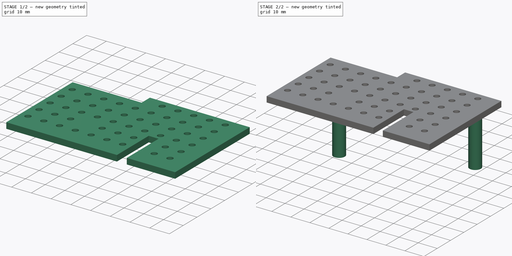
[diagram: build sequence overview — one tinted view per stage of 2, left to right]
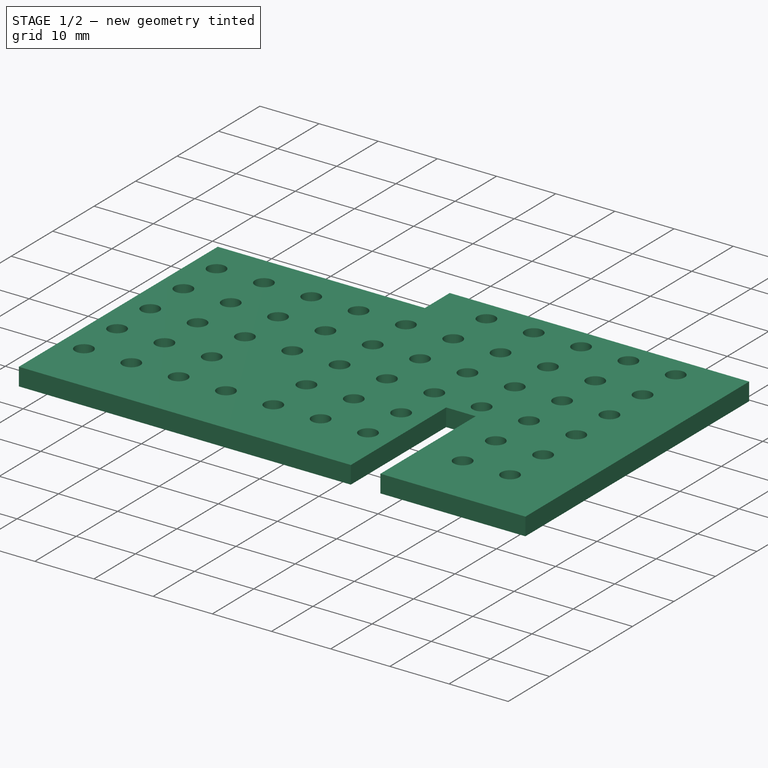
[diagram: stage 1 of 2 — iso view after this stage's code; geometry added in this stage tinted green]
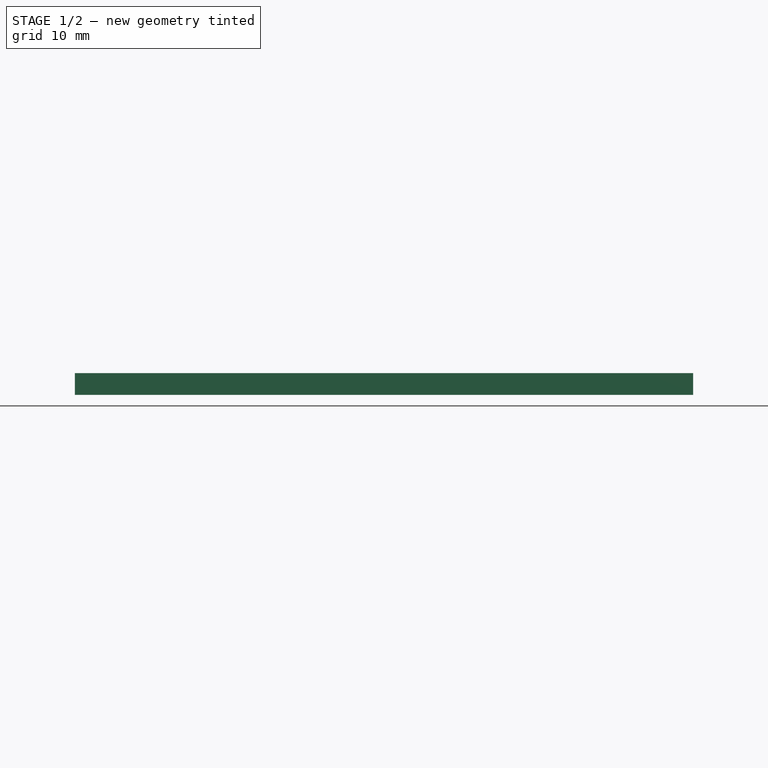
[diagram: stage 1 of 2 — front view after this stage's code; geometry added in this stage tinted green]
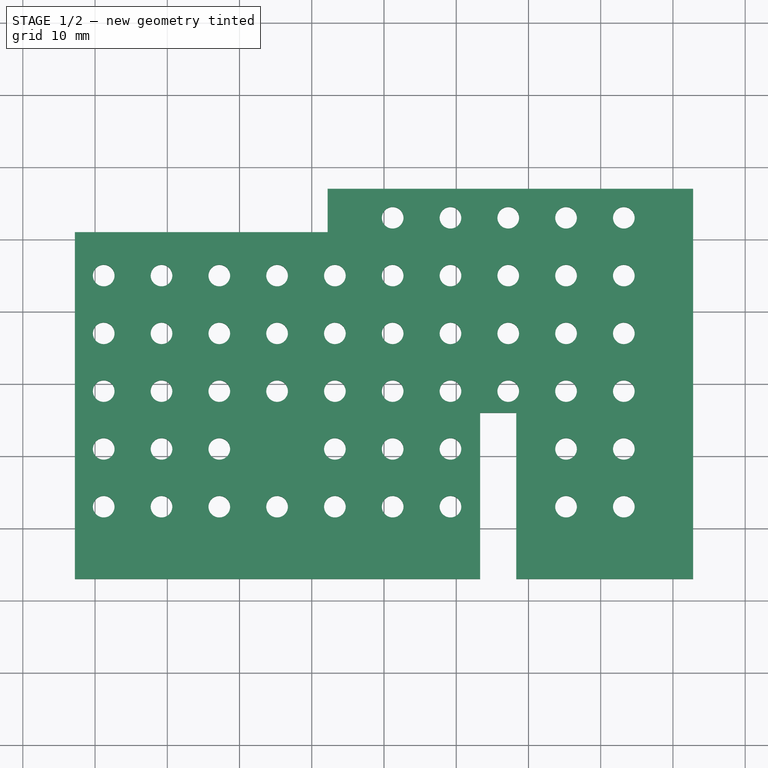
[diagram: stage 1 of 2 — top view after this stage's code; geometry added in this stage tinted green]
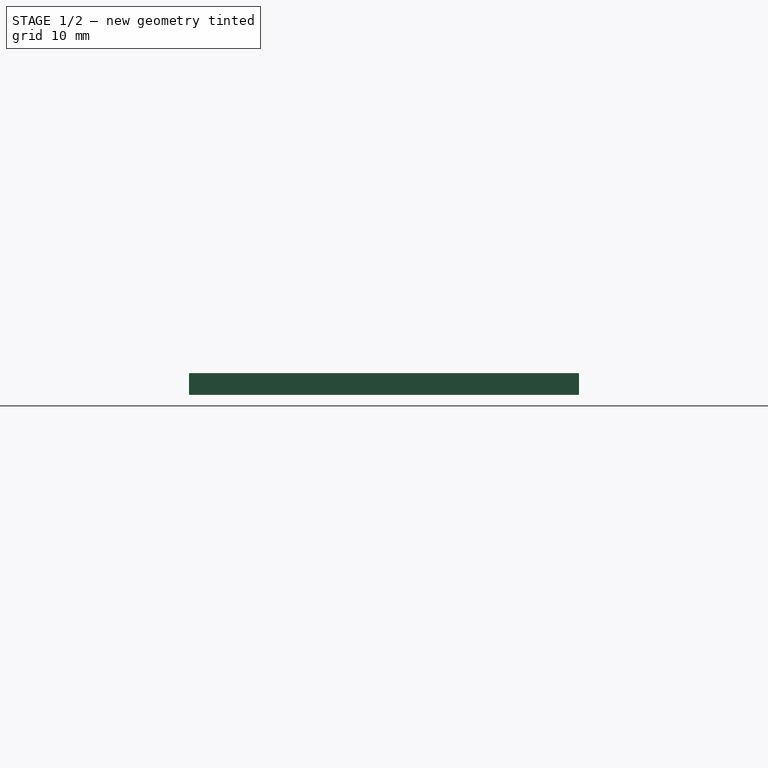
[diagram: stage 1 of 2 — right view after this stage's code; geometry added in this stage tinted green]
FCSTD DOCUMENT  (FreeCAD 0.16R6706 (Git))
Label: pi_top
License: All rights reserved
LicenseURL: http://en.wikipedia.org/wiki/All_rights_reserved
objects: Sketcher::SketchObject×3, PartDesign::Pad×2, PartDesign::Pocket×1, PartDesign::Fillet×1
note: 10 computed .brp shape members not serialized (recipe doc carries the construction recipe); baked Part::Feature solids carry a one-line shape summary decoded from their .brp

FEATURE [Sketcher::SketchObject] Sketch
  sketch-geometry (22):
    g0: LineSegment [constr] StartX=-42.8 StartY=27 StartZ=0 EndX=42.8 EndY=27 EndZ=0
    g1: LineSegment [constr] StartX=42.8 StartY=27 StartZ=0 EndX=42.8 EndY=-27 EndZ=0
    g2: LineSegment [constr] StartX=42.8 StartY=-27 StartZ=0 EndX=-42.8 EndY=-27 EndZ=0
    g3: LineSegment [constr] StartX=-42.8 StartY=-27 StartZ=0 EndX=-42.8 EndY=27 EndZ=0
    g4: LineSegment [constr] StartX=-42.8 StartY=27 StartZ=0 EndX=-7.8 EndY=27 EndZ=0
    g5: LineSegment [constr] StartX=-7.8 StartY=27 StartZ=0 EndX=-7.8 EndY=21 EndZ=0
    g6: LineSegment [constr] StartX=-7.8 StartY=21 StartZ=0 EndX=-42.8 EndY=21 EndZ=0
    g7: LineSegment [constr] StartX=-42.8 StartY=21 StartZ=0 EndX=-42.8 EndY=27 EndZ=0
    g8: LineSegment [constr] StartX=13.3 StartY=-4 StartZ=0 EndX=18.3 EndY=-4 EndZ=0
    g9: LineSegment [constr] StartX=18.3 StartY=-4 StartZ=0 EndX=18.3 EndY=-27 EndZ=0
    g10: LineSegment [constr] StartX=18.3 StartY=-27 StartZ=0 EndX=13.3 EndY=-27 EndZ=0
    g11: LineSegment [constr] StartX=13.3 StartY=-27 StartZ=0 EndX=13.3 EndY=-4 EndZ=0
    g12: LineSegment StartX=-7.8 StartY=27 StartZ=0 EndX=42.8 EndY=27 EndZ=0
    g13: LineSegment StartX=42.8 StartY=27 StartZ=0 EndX=42.8 EndY=-27 EndZ=0
    g14: LineSegment StartX=42.8 StartY=-27 StartZ=0 EndX=18.3 EndY=-27 EndZ=0
    g15: LineSegment StartX=18.3 StartY=-27 StartZ=0 EndX=18.3 EndY=-4 EndZ=0
    g16: LineSegment StartX=18.3 StartY=-4 StartZ=0 EndX=13.3 EndY=-4 EndZ=0
    g17: LineSegment StartX=13.3 StartY=-4 StartZ=0 EndX=13.3 EndY=-27 EndZ=0
    g18: LineSegment StartX=13.3 StartY=-27 StartZ=0 EndX=-42.8 EndY=-27 EndZ=0
    g19: LineSegment StartX=-42.8 StartY=-27 StartZ=0 EndX=-42.8 EndY=21 EndZ=0
    g20: LineSegment StartX=-42.8 StartY=21 StartZ=0 EndX=-7.8 EndY=21 EndZ=0
    g21: LineSegment StartX=-7.8 StartY=21 StartZ=0 EndX=-7.8 EndY=27 EndZ=0
  constraints (55):
    c: Coincident(g0,g1)
    c: Coincident(g1,g2)
    c: Coincident(g2,g3)
    c: Coincident(g3,g0)
    c: Horizontal(g0)
    c: Vertical(g1)
    c: Vertical(g3)
    c: DistanceY(g3,g3) = 54
    c: DistanceX(g0,g0) = 85.6
    c: Symmetric(g2,g1,g-2)
    c: Symmetric(g0,g2,g-1)
    c: Coincident(g4,g5)
    c: Coincident(g5,g6)
    c: Coincident(g6,g7)
    c: Coincident(g7,g4)
    c: Horizontal(g4)
    c: Horizontal(g6)
    c: Vertical(g5)
    c: Vertical(g7)
    c: Coincident(g4,g0)
    c: DistanceX(g6,g6) = 35
    c: DistanceY(g5,g5) = 6
    c: Coincident(g8,g9)
    c: Coincident(g9,g10)
    c: Coincident(g10,g11)
    c: Coincident(g11,g8)
    c: Horizontal(g8)
    c: Horizontal(g10)
    c: Vertical(g9)
    c: Vertical(g11)
    c: PointOnObject(g9,g2)
    c: DistanceX(g8,g8) = 5
    c: Distance(g9,g1) = 24.5
    c: DistanceY(g11,g11) = 23
    c: Coincident(g4,g12)
    c: Coincident(g12,g0)
    c: Coincident(g12,g13)
    c: Coincident(g13,g1)
    c: Coincident(g13,g14)
    c: Coincident(g14,g9)
    c: Coincident(g14,g15)
    c: Coincident(g15,g8)
    c: Coincident(g15,g16)
    c: Coincident(g16,g8)
    c: Coincident(g16,g17)
    c: Coincident(g17,g10)
    c: Coincident(g17,g18)
    c: Coincident(g18,g2)
    c: Coincident(g18,g19)
    c: Coincident(g19,g6)
    c: Vertical(g19)
    c: Coincident(g19,g20)
    c: Coincident(g20,g5)
    c: Coincident(g20,g21)
    c: Coincident(g21,g12)
FEATURE [PartDesign::Pad] Pad
  Length = 3
  Length2 = 100
  Sketch = -> Sketch
  Type = 0
FEATURE [Sketcher::SketchObject] Sketch002
  Placement = pos=(0,0,3) rot=(0,0,1;0rad)
  Support = -> Pad [Face12]
  sketch-geometry (157):
    g0: Circle [constr] CenterX=-38.8 CenterY=23 CenterZ=0 NormalX=0 NormalY=0 NormalZ=1 Radius=1.5
    g1: LineSegment [constr] StartX=-42.8 StartY=27 StartZ=0 EndX=42.8 EndY=27 EndZ=0
    g2: LineSegment [constr] StartX=42.8 StartY=27 StartZ=0 EndX=42.8 EndY=-27 EndZ=0
    g3: LineSegment [constr] StartX=42.8 StartY=-27 StartZ=0 EndX=-42.8 EndY=-27 EndZ=0
    g4: LineSegment [constr] StartX=-42.8 StartY=-27 StartZ=0 EndX=-42.8 EndY=27 EndZ=0
    g5: Circle [constr] CenterX=-30.8 CenterY=23 CenterZ=0 NormalX=0 NormalY=0 NormalZ=1 Radius=1.5
    g6: LineSegment [constr] StartX=-38.8 StartY=23 StartZ=0 EndX=-30.8 EndY=23 EndZ=0
    g7: Circle [constr] CenterX=-22.8 CenterY=23 CenterZ=0 NormalX=0 NormalY=0 NormalZ=1 Radius=1.5
    g8: LineSegment [constr] StartX=-30.8 StartY=23 StartZ=0 EndX=-22.8 EndY=23 EndZ=0
    g9: Circle [constr] CenterX=-14.8 CenterY=23 CenterZ=0 NormalX=0 NormalY=0 NormalZ=1 Radius=1.5
    g10: LineSegment [constr] StartX=-22.8 StartY=23 StartZ=0 EndX=-14.8 EndY=23 EndZ=0
    g11: Circle [constr] CenterX=-6.8 CenterY=23 CenterZ=0 NormalX=0 NormalY=0 NormalZ=1 Radius=1.5
    g12: LineSegment [constr] StartX=-14.8 StartY=23 StartZ=0 EndX=-6.8 EndY=23 EndZ=0
    g13: Circle CenterX=1.2 CenterY=23 CenterZ=0 NormalX=0 NormalY=0 NormalZ=1 Radius=1.5
    g14: LineSegment [constr] StartX=-6.8 StartY=23 StartZ=0 EndX=1.2 EndY=23 EndZ=0
    g15: Circle CenterX=9.2 CenterY=23 CenterZ=0 NormalX=0 NormalY=0 NormalZ=1 Radius=1.5
    g16: LineSegment [constr] StartX=1.2 StartY=23 StartZ=0 EndX=9.2 EndY=23 EndZ=0
    g17: Circle CenterX=17.2 CenterY=23 CenterZ=0 NormalX=0 NormalY=0 NormalZ=1 Radius=1.5
    g18: LineSegment [constr] StartX=9.2 StartY=23 StartZ=0 EndX=17.2 EndY=23 EndZ=0
    g19: Circle CenterX=25.2 CenterY=23 CenterZ=0 NormalX=0 NormalY=0 NormalZ=1 Radius=1.5
    g20: LineSegment [constr] StartX=17.2 StartY=23 StartZ=0 EndX=25.2 EndY=23 EndZ=0
    g21: Circle CenterX=33.2 CenterY=23 CenterZ=0 NormalX=0 NormalY=0 NormalZ=1 Radius=1.5
    g22: LineSegment [constr] StartX=25.2 StartY=23 StartZ=0 EndX=33.2 EndY=23 EndZ=0
    g23: Circle [constr] CenterX=41.2 CenterY=23 CenterZ=0 NormalX=0 NormalY=0 NormalZ=1 Radius=1.5
    g24: LineSegment [constr] StartX=33.2 StartY=23 StartZ=0 EndX=41.2 EndY=23 EndZ=0
    g25: Circle CenterX=-38.8 CenterY=15 CenterZ=0 NormalX=0 NormalY=0 NormalZ=1 Radius=1.5
    g26: LineSegment [constr] StartX=-38.8 StartY=23 StartZ=0 EndX=-38.8 EndY=15 EndZ=0
    g27: Circle CenterX=-30.8 CenterY=15 CenterZ=0 NormalX=0 NormalY=0 NormalZ=1 Radius=1.5
    g28: LineSegment [constr] StartX=-38.8 StartY=15 StartZ=0 EndX=-30.8 EndY=15 EndZ=0
    g29: Circle CenterX=-22.8 CenterY=15 CenterZ=0 NormalX=0 NormalY=0 NormalZ=1 Radius=1.5
    g30: LineSegment [constr] StartX=-30.8 StartY=15 StartZ=0 EndX=-22.8 EndY=15 EndZ=0
    g31: Circle CenterX=-14.8 CenterY=15 CenterZ=0 NormalX=0 NormalY=0 NormalZ=1 Radius=1.5
    g32: LineSegment [constr] StartX=-22.8 StartY=15 StartZ=0 EndX=-14.8 EndY=15 EndZ=0
    g33: Circle CenterX=-6.8 CenterY=15 CenterZ=0 NormalX=0 NormalY=0 NormalZ=1 Radius=1.5
    g34: LineSegment [constr] StartX=-14.8 StartY=15 StartZ=0 EndX=-6.8 EndY=15 EndZ=0
    g35: Circle CenterX=1.2 CenterY=15 CenterZ=0 NormalX=0 NormalY=0 NormalZ=1 Radius=1.5
    g36: LineSegment [constr] StartX=-6.8 StartY=15 StartZ=0 EndX=1.2 EndY=15 EndZ=0
    g37: Circle CenterX=9.2 CenterY=15 CenterZ=0 NormalX=0 NormalY=0 NormalZ=1 Radius=1.5
    g38: LineSegment [constr] StartX=1.2 StartY=15 StartZ=0 EndX=9.2 EndY=15 EndZ=0
    g39: Circle CenterX=17.2 CenterY=15 CenterZ=0 NormalX=0 NormalY=0 NormalZ=1 Radius=1.5
    g40: LineSegment [constr] StartX=9.2 StartY=15 StartZ=0 EndX=17.2 EndY=15 EndZ=0
    g41: Circle CenterX=25.2 CenterY=15 CenterZ=0 NormalX=0 NormalY=0 NormalZ=1 Radius=1.5
    g42: LineSegment [constr] StartX=17.2 StartY=15 StartZ=0 EndX=25.2 EndY=15 EndZ=0
    g43: Circle CenterX=33.2 CenterY=15 CenterZ=0 NormalX=0 NormalY=0 NormalZ=1 Radius=1.5
    g44: LineSegment [constr] StartX=25.2 StartY=15 StartZ=0 EndX=33.2 EndY=15 EndZ=0
    g45: Circle [constr] CenterX=41.2 CenterY=15 CenterZ=0 NormalX=0 NormalY=0 NormalZ=1 Radius=1.5
    g46: LineSegment [constr] StartX=33.2 StartY=15 StartZ=0 EndX=41.2 EndY=15 EndZ=0
    g47: Circle CenterX=-38.8 CenterY=7 CenterZ=0 NormalX=0 NormalY=0 NormalZ=1 Radius=1.5
    g48: LineSegment [constr] StartX=-38.8 StartY=15 StartZ=0 EndX=-38.8 EndY=7 EndZ=0
    g49: Circle CenterX=-30.8 CenterY=7 CenterZ=0 NormalX=0 NormalY=0 NormalZ=1 Radius=1.5
    g50: LineSegment [constr] StartX=-38.8 StartY=7 StartZ=0 EndX=-30.8 EndY=7 EndZ=0
    g51: Circle CenterX=-22.8 CenterY=7 CenterZ=0 NormalX=0 NormalY=0 NormalZ=1 Radius=1.5
    g52: LineSegment [constr] StartX=-30.8 StartY=7 StartZ=0 EndX=-22.8 EndY=7 EndZ=0
    g53: Circle CenterX=-14.8 CenterY=7 CenterZ=0 NormalX=0 NormalY=0 NormalZ=1 Radius=1.5
    g54: LineSegment [constr] StartX=-22.8 StartY=7 StartZ=0 EndX=-14.8 EndY=7 EndZ=0
    g55: Circle CenterX=-6.8 CenterY=7 CenterZ=0 NormalX=0 NormalY=0 NormalZ=1 Radius=1.5
    g56: LineSegment [constr] StartX=-14.8 StartY=7 StartZ=0 EndX=-6.8 EndY=7 EndZ=0
    g57: Circle CenterX=1.2 CenterY=7 CenterZ=0 NormalX=0 NormalY=0 NormalZ=1 Radius=1.5
    g58: LineSegment [constr] StartX=-6.8 StartY=7 StartZ=0 EndX=1.2 EndY=7 EndZ=0
    g59: Circle CenterX=9.2 CenterY=7 CenterZ=0 NormalX=0 NormalY=0 NormalZ=1 Radius=1.5
    g60: LineSegment [constr] StartX=1.2 StartY=7 StartZ=0 EndX=9.2 EndY=7 EndZ=0
    g61: Circle CenterX=17.2 CenterY=7 CenterZ=0 NormalX=0 NormalY=0 NormalZ=1 Radius=1.5
    g62: LineSegment [constr] StartX=9.2 StartY=7 StartZ=0 EndX=17.2 EndY=7 EndZ=0
    g63: Circle CenterX=25.2 CenterY=7 CenterZ=0 NormalX=0 NormalY=0 NormalZ=1 Radius=1.5
    g64: LineSegment [constr] StartX=17.2 StartY=7 StartZ=0 EndX=25.2 EndY=7 EndZ=0
    g65: Circle CenterX=33.2 CenterY=7 CenterZ=0 NormalX=0 NormalY=0 NormalZ=1 Radius=1.5
    g66: LineSegment [constr] StartX=25.2 StartY=7 StartZ=0 EndX=33.2 EndY=7 EndZ=0
    g67: Circle [constr] CenterX=41.2 CenterY=7 CenterZ=0 NormalX=0 NormalY=0 NormalZ=1 Radius=1.5
    g68: LineSegment [constr] StartX=33.2 StartY=7 StartZ=0 EndX=41.2 EndY=7 EndZ=0
    g69: Circle CenterX=-38.8 CenterY=-1 CenterZ=0 NormalX=0 NormalY=0 NormalZ=1 Radius=1.5
    g70: LineSegment [constr] StartX=-38.8 StartY=7 StartZ=0 EndX=-38.8 EndY=-1 EndZ=0
    g71: Circle CenterX=-30.8 CenterY=-1 CenterZ=0 NormalX=0 NormalY=0 NormalZ=1 Radius=1.5
    g72: LineSegment [constr] StartX=-38.8 StartY=-1 StartZ=0 EndX=-30.8 EndY=-1 EndZ=0
    g73: Circle CenterX=-22.8 CenterY=-1 CenterZ=0 NormalX=0 NormalY=0 NormalZ=1 Radius=1.5
    g74: LineSegment [constr] StartX=-30.8 StartY=-1 StartZ=0 EndX=-22.8 EndY=-1 EndZ=0
    g75: Circle CenterX=-14.8 CenterY=-1 CenterZ=0 NormalX=0 NormalY=0 NormalZ=1 Radius=1.5
    g76: LineSegment [constr] StartX=-22.8 StartY=-1 StartZ=0 EndX=-14.8 EndY=-1 EndZ=0
    g77: Circle CenterX=-6.8 CenterY=-1 CenterZ=0 NormalX=0 NormalY=0 NormalZ=1 Radius=1.5
    g78: LineSegment [constr] StartX=-14.8 StartY=-1 StartZ=0 EndX=-6.8 EndY=-1 EndZ=0
    g79: Circle CenterX=1.2 CenterY=-1 CenterZ=0 NormalX=0 NormalY=0 NormalZ=1 Radius=1.5
    g80: LineSegment [constr] StartX=-6.8 StartY=-1 StartZ=0 EndX=1.2 EndY=-1 EndZ=0
    g81: Circle CenterX=9.2 CenterY=-1 CenterZ=0 NormalX=0 NormalY=0 NormalZ=1 Radius=1.5
    g82: LineSegment [constr] StartX=1.2 StartY=-1 StartZ=0 EndX=9.2 EndY=-1 EndZ=0
    g83: Circle CenterX=17.2 CenterY=-1 CenterZ=0 NormalX=0 NormalY=0 NormalZ=1 Radius=1.5
    g84: LineSegment [constr] StartX=9.2 StartY=-1 StartZ=0 EndX=17.2 EndY=-1 EndZ=0
    g85: Circle CenterX=25.2 CenterY=-1 CenterZ=0 NormalX=0 NormalY=0 NormalZ=1 Radius=1.5
    g86: LineSegment [constr] StartX=17.2 StartY=-1 StartZ=0 EndX=25.2 EndY=-1 EndZ=0
    g87: Circle CenterX=33.2 CenterY=-1 CenterZ=0 NormalX=0 NormalY=0 NormalZ=1 Radius=1.5
    g88: LineSegment [constr] StartX=25.2 StartY=-1 StartZ=0 EndX=33.2 EndY=-1 EndZ=0
    g89: Circle [constr] CenterX=41.2 CenterY=-1 CenterZ=0 NormalX=0 NormalY=0 NormalZ=1 Radius=1.5
    g90: LineSegment [constr] StartX=33.2 StartY=-1 StartZ=0 EndX=41.2 EndY=-1 EndZ=0
    g91: Circle CenterX=-38.8 CenterY=-9 CenterZ=0 NormalX=0 NormalY=0 NormalZ=1 Radius=1.5
    g92: LineSegment [constr] StartX=-38.8 StartY=-1 StartZ=0 EndX=-38.8 EndY=-9 EndZ=0
    g93: Circle CenterX=-30.8 CenterY=-9 CenterZ=0 NormalX=0 NormalY=0 NormalZ=1 Radius=1.5
    g94: LineSegment [constr] StartX=-38.8 StartY=-9 StartZ=0 EndX=-30.8 EndY=-9 EndZ=0
    g95: Circle CenterX=-22.8 CenterY=-9 CenterZ=0 NormalX=0 NormalY=0 NormalZ=1 Radius=1.5
    g96: LineSegment [constr] StartX=-30.8 StartY=-9 StartZ=0 EndX=-22.8 EndY=-9 EndZ=0
    g97: Circle [constr] CenterX=-14.8 CenterY=-9 CenterZ=0 NormalX=0 NormalY=0 NormalZ=1 Radius=1.5
    g98: LineSegment [constr] StartX=-22.8 StartY=-9 StartZ=0 EndX=-14.8 EndY=-9 EndZ=0
    g99: Circle CenterX=-6.8 CenterY=-9 CenterZ=0 NormalX=0 NormalY=0 NormalZ=1 Radius=1.5
    g100: LineSegment [constr] StartX=-14.8 StartY=-9 StartZ=0 EndX=-6.8 EndY=-9 EndZ=0
    g101: Circle CenterX=1.2 CenterY=-9 CenterZ=0 NormalX=0 NormalY=0 NormalZ=1 Radius=1.5
    g102: LineSegment [constr] StartX=-6.8 StartY=-9 StartZ=0 EndX=1.2 EndY=-9 EndZ=0
    g103: Circle CenterX=9.2 CenterY=-9 CenterZ=0 NormalX=0 NormalY=0 NormalZ=1 Radius=1.5
    g104: LineSegment [constr] StartX=1.2 StartY=-9 StartZ=0 EndX=9.2 EndY=-9 EndZ=0
    g105: Circle [constr] CenterX=17.2 CenterY=-9 CenterZ=0 NormalX=0 NormalY=0 NormalZ=1 Radius=1.5
    g106: LineSegment [constr] StartX=9.2 StartY=-9 StartZ=0 EndX=17.2 EndY=-9 EndZ=0
    g107: Circle CenterX=25.2 CenterY=-9 CenterZ=0 NormalX=0 NormalY=0 NormalZ=1 Radius=1.5
    g108: LineSegment [constr] StartX=17.2 StartY=-9 StartZ=0 EndX=25.2 EndY=-9 EndZ=0
    g109: Circle CenterX=33.2 CenterY=-9 CenterZ=0 NormalX=0 NormalY=0 NormalZ=1 Radius=1.5
    g110: LineSegment [constr] StartX=25.2 StartY=-9 StartZ=0 EndX=33.2 EndY=-9 EndZ=0
    g111: Circle [constr] CenterX=41.2 CenterY=-9 CenterZ=0 NormalX=0 NormalY=0 NormalZ=1 Radius=1.5
    g112: LineSegment [constr] StartX=33.2 StartY=-9 StartZ=0 EndX=41.2 EndY=-9 EndZ=0
    g113: Circle CenterX=-38.8 CenterY=-17 CenterZ=0 NormalX=0 NormalY=0 NormalZ=1 Radius=1.5
    g114: LineSegment [constr] StartX=-38.8 StartY=-9 StartZ=0 EndX=-38.8 EndY=-17 EndZ=0
    g115: Circle CenterX=-30.8 CenterY=-17 CenterZ=0 NormalX=0 NormalY=0 NormalZ=1 Radius=1.5
    g116: LineSegment [constr] StartX=-38.8 StartY=-17 StartZ=0 EndX=-30.8 EndY=-17 EndZ=0
    g117: Circle CenterX=-22.8 CenterY=-17 CenterZ=0 NormalX=0 NormalY=0 NormalZ=1 Radius=1.5
    g118: LineSegment [constr] StartX=-30.8 StartY=-17 StartZ=0 EndX=-22.8 EndY=-17 EndZ=0
    g119: Circle CenterX=-14.8 CenterY=-17 CenterZ=0 NormalX=0 NormalY=0 NormalZ=1 Radius=1.5
    g120: LineSegment [constr] StartX=-22.8 StartY=-17 StartZ=0 EndX=-14.8 EndY=-17 EndZ=0
    g121: Circle CenterX=-6.8 CenterY=-17 CenterZ=0 NormalX=0 NormalY=0 NormalZ=1 Radius=1.5
    g122: LineSegment [constr] StartX=-14.8 StartY=-17 StartZ=0 EndX=-6.8 EndY=-17 EndZ=0
    g123: Circle CenterX=1.2 CenterY=-17 CenterZ=0 NormalX=0 NormalY=0 NormalZ=1 Radius=1.5
    g124: LineSegment [constr] StartX=-6.8 StartY=-17 StartZ=0 EndX=1.2 EndY=-17 EndZ=0
    g125: Circle CenterX=9.2 CenterY=-17 CenterZ=0 NormalX=0 NormalY=0 NormalZ=1 Radius=1.5
    g126: LineSegment [constr] StartX=1.2 StartY=-17 StartZ=0 EndX=9.2 EndY=-17 EndZ=0
    g127: Circle [constr] CenterX=17.2 CenterY=-17 CenterZ=0 NormalX=0 NormalY=0 NormalZ=1 Radius=1.5
    g128: LineSegment [constr] StartX=9.2 StartY=-17 StartZ=0 EndX=17.2 EndY=-17 EndZ=0
    g129: Circle CenterX=25.2 CenterY=-17 CenterZ=0 NormalX=0 NormalY=0 NormalZ=1 Radius=1.5
    g130: LineSegment [constr] StartX=17.2 StartY=-17 StartZ=0 EndX=25.2 EndY=-17 EndZ=0
    g131: Circle CenterX=33.2 CenterY=-17 CenterZ=0 NormalX=0 NormalY=0 NormalZ=1 Radius=1.5
    g132: LineSegment [constr] StartX=25.2 StartY=-17 StartZ=0 EndX=33.2 EndY=-17 EndZ=0
    g133: Circle [constr] CenterX=41.2 CenterY=-17 CenterZ=0 NormalX=0 NormalY=0 NormalZ=1 Radius=1.5
    g134: LineSegment [constr] StartX=33.2 StartY=-17 StartZ=0 EndX=41.2 EndY=-17 EndZ=0
    g135: Circle [constr] CenterX=-38.8 CenterY=-25 CenterZ=0 NormalX=0 NormalY=0 NormalZ=1 Radius=1.5
    g136: LineSegment [constr] StartX=-38.8 StartY=-17 StartZ=0 EndX=-38.8 EndY=-25 EndZ=0
    g137: Circle [constr] CenterX=-30.8 CenterY=-25 CenterZ=0 NormalX=0 NormalY=0 NormalZ=1 Radius=1.5
    g138: LineSegment [constr] StartX=-38.8 StartY=-25 StartZ=0 EndX=-30.8 EndY=-25 EndZ=0
    g139: Circle [constr] CenterX=-22.8 CenterY=-25 CenterZ=0 NormalX=0 NormalY=0 NormalZ=1 Radius=1.5
    g140: LineSegment [constr] StartX=-30.8 StartY=-25 StartZ=0 EndX=-22.8 EndY=-25 EndZ=0
    g141: Circle [constr] CenterX=-14.8 CenterY=-25 CenterZ=0 NormalX=0 NormalY=0 NormalZ=1 Radius=1.5
    g142: LineSegment [constr] StartX=-22.8 StartY=-25 StartZ=0 EndX=-14.8 EndY=-25 EndZ=0
    g143: Circle [constr] CenterX=-6.8 CenterY=-25 CenterZ=0 NormalX=0 NormalY=0 NormalZ=1 Radius=1.5
    g144: LineSegment [constr] StartX=-14.8 StartY=-25 StartZ=0 EndX=-6.8 EndY=-25 EndZ=0
    g145: Circle [constr] CenterX=1.2 CenterY=-25 CenterZ=0 NormalX=0 NormalY=0 NormalZ=1 Radius=1.5
    g146: LineSegment [constr] StartX=-6.8 StartY=-25 StartZ=0 EndX=1.2 EndY=-25 EndZ=0
    g147: Circle [constr] CenterX=9.2 CenterY=-25 CenterZ=0 NormalX=0 NormalY=0 NormalZ=1 Radius=1.5
    g148: LineSegment [constr] StartX=1.2 StartY=-25 StartZ=0 EndX=9.2 EndY=-25 EndZ=0
    g149: Circle [constr] CenterX=17.2 CenterY=-25 CenterZ=0 NormalX=0 NormalY=0 NormalZ=1 Radius=1.5
    g150: LineSegment [constr] StartX=9.2 StartY=-25 StartZ=0 EndX=17.2 EndY=-25 EndZ=0
    g151: Circle [constr] CenterX=25.2 CenterY=-25 CenterZ=0 NormalX=0 NormalY=0 NormalZ=1 Radius=1.5
    g152: LineSegment [constr] StartX=17.2 StartY=-25 StartZ=0 EndX=25.2 EndY=-25 EndZ=0
    g153: Circle [constr] CenterX=33.2 CenterY=-25 CenterZ=0 NormalX=0 NormalY=0 NormalZ=1 Radius=1.5
    g154: LineSegment [constr] StartX=25.2 StartY=-25 StartZ=0 EndX=33.2 EndY=-25 EndZ=0
    g155: Circle [constr] CenterX=41.2 CenterY=-25 CenterZ=0 NormalX=0 NormalY=0 NormalZ=1 Radius=1.5
    g156: LineSegment [constr] StartX=33.2 StartY=-25 StartZ=0 EndX=41.2 EndY=-25 EndZ=0
  constraints (395):
    c: Radius(g0) = 1.5
    c: Coincident(g1,g2)
    c: Coincident(g2,g3)
    c: Coincident(g3,g4)
    c: Coincident(g4,g1)
    c: Horizontal(g1)
    c: Horizontal(g3)
    c: Vertical(g2)
    c: Vertical(g4)
    c: DistanceY(g4,g4) = 54
    c: DistanceX(g3,g3) = 85.6
    c: Symmetric(g3,g2,g-2)
    c: Symmetric(g1,g3,g-1)
    c: Distance(g0,g1) = 4
    c: Distance(g0,g4) = 4
    c: Equal(g0,g5) = 1.5
    c: Coincident(g0,g6)
    c: Coincident(g5,g6)
    c: Distance(g6) = 8
    c: Equal(g0,g7) = 1.5
    c: Coincident(g5,g8)
    c: Coincident(g7,g8)
    c: Equal(g6,g8)
    c: Parallel(g8,g6)
    c: Equal(g0,g9) = 1.5
    c: Coincident(g7,g10)
    c: Coincident(g9,g10)
    c: Equal(g6,g10)
    c: Parallel(g10,g6)
    c: Equal(g0,g11) = 1.5
    c: Coincident(g9,g12)
    c: Coincident(g11,g12)
    c: Equal(g6,g12)
    c: Parallel(g12,g6)
    c: Equal(g0,g13) = 1.5
    c: Coincident(g11,g14)
    c: Coincident(g13,g14)
    c: Equal(g6,g14)
    c: Parallel(g14,g6)
    c: Equal(g0,g15) = 1.5
    c: Coincident(g13,g16)
    c: Coincident(g15,g16)
    c: Equal(g6,g16)
    c: Parallel(g16,g6)
    c: Equal(g0,g17) = 1.5
    c: Coincident(g15,g18)
    c: Coincident(g17,g18)
    c: Equal(g6,g18)
    c: Parallel(g18,g6)
    c: Equal(g0,g19) = 1.5
    c: Coincident(g17,g20)
    c: Coincident(g19,g20)
    c: Equal(g6,g20)
    c: Parallel(g20,g6)
    c: Equal(g0,g21) = 1.5
    c: Coincident(g19,g22)
    c: Coincident(g21,g22)
    c: Equal(g6,g22)
    c: Parallel(g22,g6)
    c: Equal(g0,g23) = 1.5
    c: Coincident(g21,g24)
    c: Coincident(g23,g24)
    c: Equal(g6,g24)
    c: Parallel(g24,g6)
    c: Equal(g0,g25) = 1.5
    c: Coincident(g0,g26)
    c: Coincident(g25,g26)
    c: Equal(g26,g6)
    c: Perpendicular(g26,g6)
    c: Equal(g0,g27) = 1.5
    c: Coincident(g25,g28)
    c: Coincident(g27,g28)
    c: Equal(g6,g28)
    c: Parallel(g28,g6)
    c: Equal(g0,g29) = 1.5
    c: Coincident(g27,g30)
    c: Coincident(g29,g30)
    c: Equal(g6,g30)
    c: Parallel(g30,g6)
    c: Equal(g0,g31) = 1.5
    c: Coincident(g29,g32)
    c: Coincident(g31,g32)
    c: Equal(g6,g32)
    c: Parallel(g32,g6)
    c: Equal(g0,g33) = 1.5
    c: Coincident(g31,g34)
    c: Coincident(g33,g34)
    c: Equal(g6,g34)
    c: Parallel(g34,g6)
    c: Equal(g0,g35) = 1.5
    c: Coincident(g33,g36)
    c: Coincident(g35,g36)
    c: Equal(g6,g36)
    c: Parallel(g36,g6)
    c: Equal(g0,g37) = 1.5
    c: Coincident(g35,g38)
    c: Coincident(g37,g38)
    c: Equal(g6,g38)
    c: Parallel(g38,g6)
    c: Equal(g0,g39) = 1.5
    c: Coincident(g37,g40)
    c: Coincident(g39,g40)
    c: Equal(g6,g40)
    c: Parallel(g40,g6)
    c: Equal(g0,g41) = 1.5
    c: Coincident(g39,g42)
    c: Coincident(g41,g42)
    c: Equal(g6,g42)
    c: Parallel(g42,g6)
    c: Equal(g0,g43) = 1.5
    c: Coincident(g41,g44)
    c: Coincident(g43,g44)
    c: Equal(g6,g44)
    c: Parallel(g44,g6)
    c: Equal(g0,g45) = 1.5
    c: Coincident(g43,g46)
    c: Coincident(g45,g46)
    c: Equal(g6,g46)
    c: Parallel(g46,g6)
    c: Equal(g0,g47) = 1.5
    c: Coincident(g25,g48)
    c: Coincident(g47,g48)
    c: Equal(g26,g48)
    c: Perpendicular(g48,g6)
    c: Equal(g0,g49) = 1.5
    c: Coincident(g47,g50)
    c: Coincident(g49,g50)
    c: Equal(g6,g50)
    c: Parallel(g50,g6)
    c: Equal(g0,g51) = 1.5
    c: Coincident(g49,g52)
    c: Coincident(g51,g52)
    c: Equal(g6,g52)
    c: Parallel(g52,g6)
    c: Equal(g0,g53) = 1.5
    c: Coincident(g51,g54)
    c: Coincident(g53,g54)
    c: Equal(g6,g54)
    c: Parallel(g54,g6)
    c: Equal(g0,g55) = 1.5
    c: Coincident(g53,g56)
    c: Coincident(g55,g56)
    c: Equal(g6,g56)
    c: Parallel(g56,g6)
    c: Equal(g0,g57) = 1.5
    c: Coincident(g55,g58)
    c: Coincident(g57,g58)
    c: Equal(g6,g58)
    c: Parallel(g58,g6)
    c: Equal(g0,g59) = 1.5
    c: Coincident(g57,g60)
    c: Coincident(g59,g60)
    c: Equal(g6,g60)
    c: Parallel(g60,g6)
    c: Equal(g0,g61) = 1.5
    c: Coincident(g59,g62)
    c: Coincident(g61,g62)
    c: Equal(g6,g62)
    c: Parallel(g62,g6)
    c: Equal(g0,g63) = 1.5
    c: Coincident(g61,g64)
    c: Coincident(g63,g64)
    c: Equal(g6,g64)
    c: Parallel(g64,g6)
    c: Equal(g0,g65) = 1.5
    c: Coincident(g63,g66)
    c: Coincident(g65,g66)
    c: Equal(g6,g66)
    c: Parallel(g66,g6)
    c: Equal(g0,g67) = 1.5
    c: Coincident(g65,g68)
    c: Coincident(g67,g68)
    c: Equal(g6,g68)
    c: Parallel(g68,g6)
    c: Equal(g0,g69) = 1.5
    c: Coincident(g47,g70)
    c: Coincident(g69,g70)
    c: Equal(g26,g70)
    c: Perpendicular(g70,g6)
    c: Equal(g0,g71) = 1.5
    c: Coincident(g69,g72)
    c: Coincident(g71,g72)
    c: Equal(g6,g72)
    c: Parallel(g72,g6)
    c: Equal(g0,g73) = 1.5
    c: Coincident(g71,g74)
    c: Coincident(g73,g74)
    c: Equal(g6,g74)
    c: Parallel(g74,g6)
    c: Equal(g0,g75) = 1.5
    c: Coincident(g73,g76)
    c: Coincident(g75,g76)
    c: Equal(g6,g76)
    c: Parallel(g76,g6)
    c: Equal(g0,g77) = 1.5
    c: Coincident(g75,g78)
    c: Coincident(g77,g78)
    c: Equal(g6,g78)
    c: Parallel(g78,g6)
    c: Equal(g0,g79) = 1.5
    c: Coincident(g77,g80)
    c: Coincident(g79,g80)
    c: Equal(g6,g80)
    c: Parallel(g80,g6)
    c: Equal(g0,g81) = 1.5
    c: Coincident(g79,g82)
    c: Coincident(g81,g82)
    c: Equal(g6,g82)
    c: Parallel(g82,g6)
    c: Equal(g0,g83) = 1.5
    c: Coincident(g81,g84)
    c: Coincident(g83,g84)
    c: Equal(g6,g84)
    c: Parallel(g84,g6)
    c: Equal(g0,g85) = 1.5
    c: Coincident(g83,g86)
    c: Coincident(g85,g86)
    c: Equal(g6,g86)
    c: Parallel(g86,g6)
    c: Equal(g0,g87) = 1.5
    c: Coincident(g85,g88)
    c: Coincident(g87,g88)
    c: Equal(g6,g88)
    c: Parallel(g88,g6)
    c: Equal(g0,g89) = 1.5
    c: Coincident(g87,g90)
    c: Coincident(g89,g90)
    c: Equal(g6,g90)
    c: Parallel(g90,g6)
    c: Equal(g0,g91) = 1.5
    c: Coincident(g69,g92)
    c: Coincident(g91,g92)
    c: Equal(g26,g92)
    c: Perpendicular(g92,g6)
    c: Equal(g0,g93) = 1.5
    c: Coincident(g91,g94)
    c: Coincident(g93,g94)
    c: Equal(g6,g94)
    c: Parallel(g94,g6)
    c: Equal(g0,g95) = 1.5
    c: Coincident(g93,g96)
    c: Coincident(g95,g96)
    c: Equal(g6,g96)
    c: Parallel(g96,g6)
    c: Equal(g0,g97) = 1.5
    c: Coincident(g95,g98)
    c: Coincident(g97,g98)
    c: Equal(g6,g98)
    c: Parallel(g98,g6)
    c: Equal(g0,g99) = 1.5
    c: Coincident(g97,g100)
    c: Coincident(g99,g100)
    c: Equal(g6,g100)
    c: Parallel(g100,g6)
    c: Equal(g0,g101) = 1.5
    c: Coincident(g99,g102)
    c: Coincident(g101,g102)
    c: Equal(g6,g102)
    c: Parallel(g102,g6)
    c: Equal(g0,g103) = 1.5
    c: Coincident(g101,g104)
    c: Coincident(g103,g104)
    c: Equal(g6,g104)
    c: Parallel(g104,g6)
    c: Equal(g0,g105) = 1.5
    c: Coincident(g103,g106)
    c: Coincident(g105,g106)
    c: Equal(g6,g106)
    c: Parallel(g106,g6)
    c: Equal(g0,g107) = 1.5
    c: Coincident(g105,g108)
    c: Coincident(g107,g108)
    c: Equal(g6,g108)
    c: Parallel(g108,g6)
    c: Equal(g0,g109) = 1.5
    c: Coincident(g107,g110)
    c: Coincident(g109,g110)
    c: Equal(g6,g110)
    c: Parallel(g110,g6)
    c: Equal(g0,g111) = 1.5
    c: Coincident(g109,g112)
    c: Coincident(g111,g112)
    c: Equal(g6,g112)
    c: Parallel(g112,g6)
    c: Equal(g0,g113) = 1.5
    c: Coincident(g91,g114)
    c: Coincident(g113,g114)
    c: Equal(g26,g114)
    c: Perpendicular(g114,g6)
    c: Equal(g0,g115) = 1.5
    c: Coincident(g113,g116)
    c: Coincident(g115,g116)
    c: Equal(g6,g116)
    c: Parallel(g116,g6)
    c: Equal(g0,g117) = 1.5
    c: Coincident(g115,g118)
    c: Coincident(g117,g118)
    c: Equal(g6,g118)
    c: Parallel(g118,g6)
    c: Equal(g0,g119) = 1.5
    c: Coincident(g117,g120)
    c: Coincident(g119,g120)
    c: Equal(g6,g120)
    c: Parallel(g120,g6)
    c: Equal(g0,g121) = 1.5
    c: Coincident(g119,g122)
    c: Coincident(g121,g122)
    c: Equal(g6,g122)
    c: Parallel(g122,g6)
    c: Equal(g0,g123) = 1.5
    c: Coincident(g121,g124)
    c: Coincident(g123,g124)
    c: Equal(g6,g124)
    c: Parallel(g124,g6)
    c: Equal(g0,g125) = 1.5
    c: Coincident(g123,g126)
    c: Coincident(g125,g126)
    c: Equal(g6,g126)
    c: Parallel(g126,g6)
    c: Equal(g0,g127) = 1.5
    c: Coincident(g125,g128)
    c: Coincident(g127,g128)
    c: Equal(g6,g128)
    c: Parallel(g128,g6)
    c: Equal(g0,g129) = 1.5
    c: Coincident(g127,g130)
    c: Coincident(g129,g130)
    c: Equal(g6,g130)
    c: Parallel(g130,g6)
    c: Equal(g0,g131) = 1.5
    c: Coincident(g129,g132)
    c: Coincident(g131,g132)
    c: Equal(g6,g132)
    c: Parallel(g132,g6)
    c: Equal(g0,g133) = 1.5
    c: Coincident(g131,g134)
    c: Coincident(g133,g134)
    c: Equal(g6,g134)
    c: Parallel(g134,g6)
    c: Equal(g0,g135) = 1.5
    c: Coincident(g113,g136)
    c: Coincident(g135,g136)
    c: Equal(g26,g136)
    c: Perpendicular(g136,g6)
    c: Equal(g0,g137) = 1.5
    c: Coincident(g135,g138)
    c: Coincident(g137,g138)
    c: Equal(g6,g138)
    c: Parallel(g138,g6)
    c: Equal(g0,g139) = 1.5
    c: Coincident(g137,g140)
    c: Coincident(g139,g140)
    c: Equal(g6,g140)
    c: Parallel(g140,g6)
    c: Equal(g0,g141) = 1.5
    c: Coincident(g139,g142)
    c: Coincident(g141,g142)
    c: Equal(g6,g142)
    c: Parallel(g142,g6)
    c: Equal(g0,g143) = 1.5
    c: Coincident(g141,g144)
    c: Coincident(g143,g144)
    c: Equal(g6,g144)
    c: Parallel(g144,g6)
    c: Equal(g0,g145) = 1.5
    c: Coincident(g143,g146)
    c: Coincident(g145,g146)
    c: Equal(g6,g146)
    c: Parallel(g146,g6)
    c: Equal(g0,g147) = 1.5
    c: Coincident(g145,g148)
    c: Coincident(g147,g148)
    c: Equal(g6,g148)
    c: Parallel(g148,g6)
    c: Equal(g0,g149) = 1.5
    c: Coincident(g147,g150)
    c: Coincident(g149,g150)
    c: Equal(g6,g150)
    c: Parallel(g150,g6)
    c: Equal(g0,g151) = 1.5
    c: Coincident(g149,g152)
    c: Coincident(g151,g152)
    c: Equal(g6,g152)
    c: Parallel(g152,g6)
    c: Equal(g0,g153) = 1.5
    c: Coincident(g151,g154)
    c: Coincident(g153,g154)
    c: Equal(g6,g154)
    c: Parallel(g154,g6)
    c: Equal(g0,g155) = 1.5
    c: Coincident(g153,g156)
    c: Coincident(g155,g156)
    c: Equal(g6,g156)
    c: Parallel(g156,g6)
    c: Horizontal(g6)
FEATURE [PartDesign::Pocket] Pocket
  Length = 5
  Sketch = -> Sketch002
  Type = 1
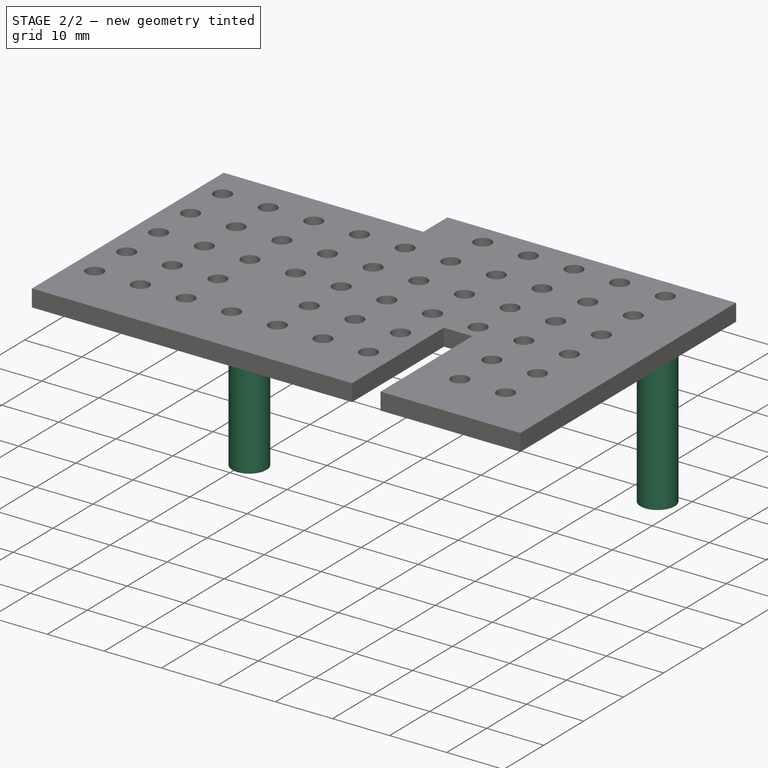
[diagram: stage 2 of 2 — iso view after this stage's code; geometry added in this stage tinted green]
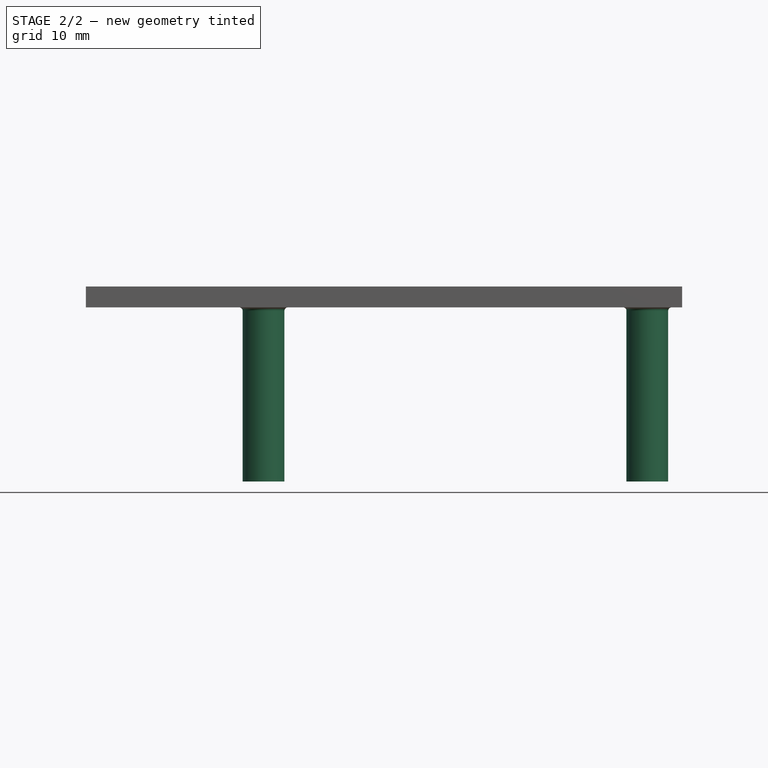
[diagram: stage 2 of 2 — front view after this stage's code; geometry added in this stage tinted green]
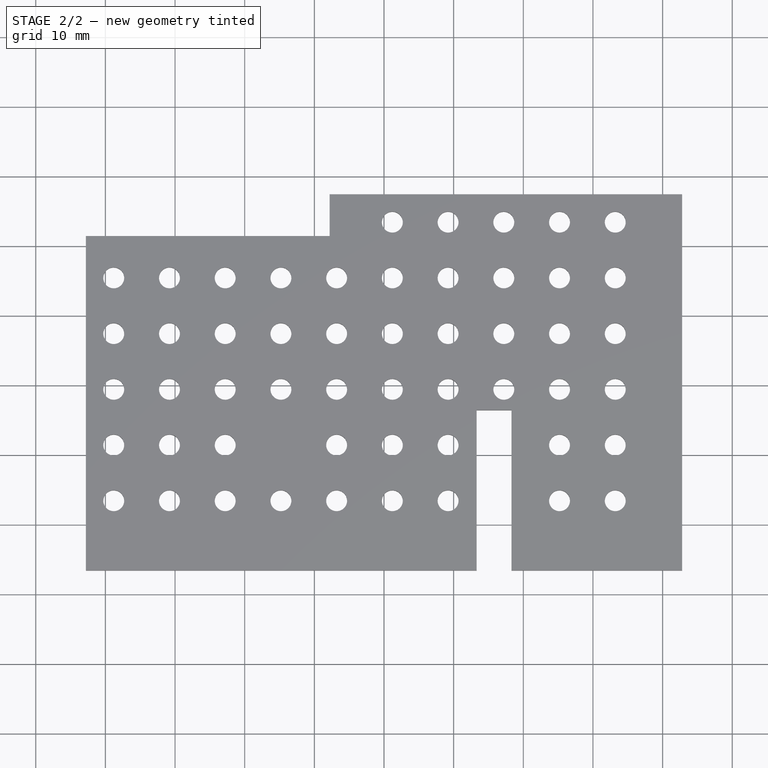
[diagram: stage 2 of 2 — top view after this stage's code; geometry added in this stage tinted green]
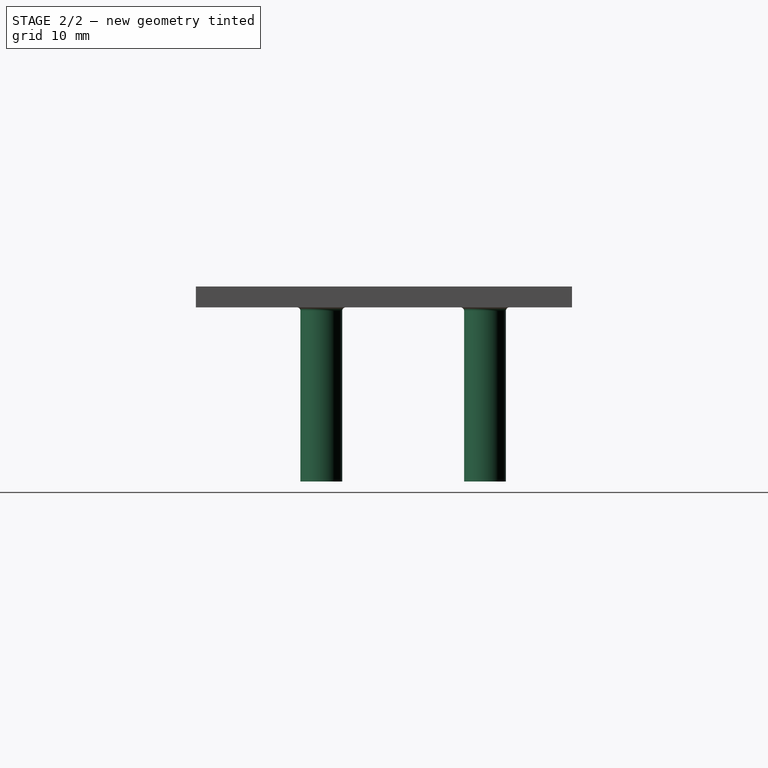
[diagram: stage 2 of 2 — right view after this stage's code; geometry added in this stage tinted green]
FEATURE [Sketcher::SketchObject] Sketch001
  Placement = pos=(0,0,3) rot=(0,0,1;0rad)
  Support = -> Pocket [Face5]
  sketch-geometry (8):
    g0: LineSegment [constr] StartX=-42.8 StartY=27 StartZ=0 EndX=42.8 EndY=27 EndZ=0
    g1: LineSegment [constr] StartX=42.8 StartY=27 StartZ=0 EndX=42.8 EndY=-27 EndZ=0
    g2: LineSegment [constr] StartX=42.8 StartY=-27 StartZ=0 EndX=-42.8 EndY=-27 EndZ=0
    g3: LineSegment [constr] StartX=-42.8 StartY=-27 StartZ=0 EndX=-42.8 EndY=27 EndZ=0
    g4: Circle CenterX=-17.3 CenterY=-9 CenterZ=0 NormalX=0 NormalY=0 NormalZ=1 Radius=1.5
    g5: Circle CenterX=37.8 CenterY=14.5 CenterZ=0 NormalX=0 NormalY=0 NormalZ=1 Radius=1.5
    g6: Circle CenterX=-17.3 CenterY=-9 CenterZ=0 NormalX=0 NormalY=0 NormalZ=1 Radius=3
    g7: Circle CenterX=37.8 CenterY=14.5 CenterZ=0 NormalX=0 NormalY=0 NormalZ=1 Radius=3
  constraints (22):
    c: Coincident(g0,g1)
    c: Coincident(g1,g2)
    c: Coincident(g2,g3)
    c: Coincident(g3,g0)
    c: Horizontal(g0)
    c: Horizontal(g2)
    c: Vertical(g1)
    c: Vertical(g3)
    c: DistanceY(g3,g3) = 54
    c: DistanceX(g2,g2) = 85.6
    c: Symmetric(g2,g1,g-2)
    c: Symmetric(g2,g0,g-1)
    c: Equal(g4,g5)
    c: Radius(g4) = 1.5
    c: Distance(g4,g3) = 25.5
    c: Distance(g4,g2) = 18
    c: Distance(g5,g1) = 5
    c: Distance(g5,g0) = 12.5
    c: Coincident(g6,g4)
    c: Coincident(g7,g5)
    c: Radius(g7) = 3
    c: Radius(g6) = 3
FEATURE [PartDesign::Pad] Pad001
  Length = 28
  Length2 = 100
  Reversed = true
  Sketch = -> Sketch001
  Type = 0
FEATURE [PartDesign::Fillet] Fillet
  Base = -> Pad001 [Edge66,Edge19]
  Radius = 0.5
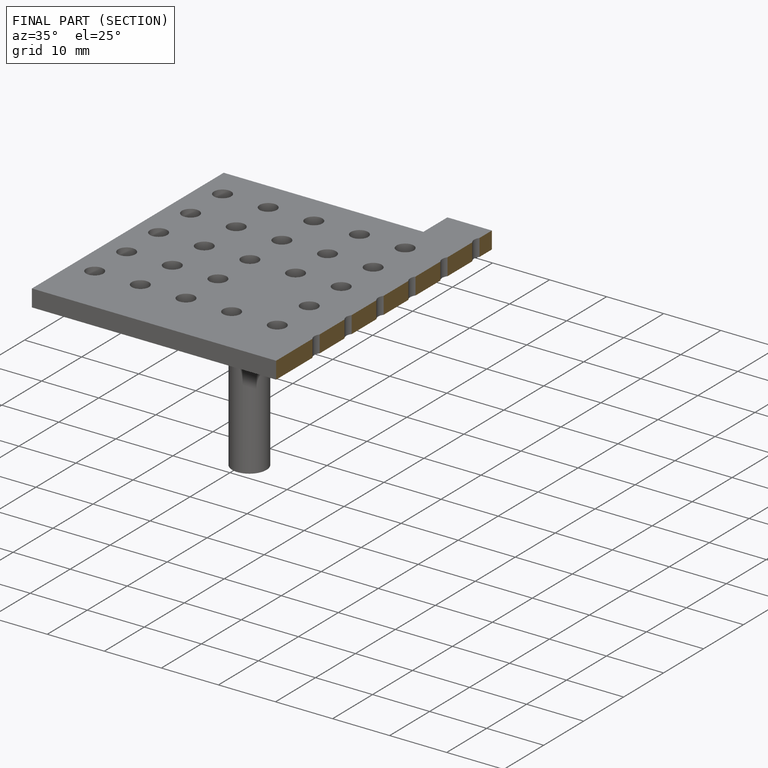
[diagram: finished part — half-section view (interior)]
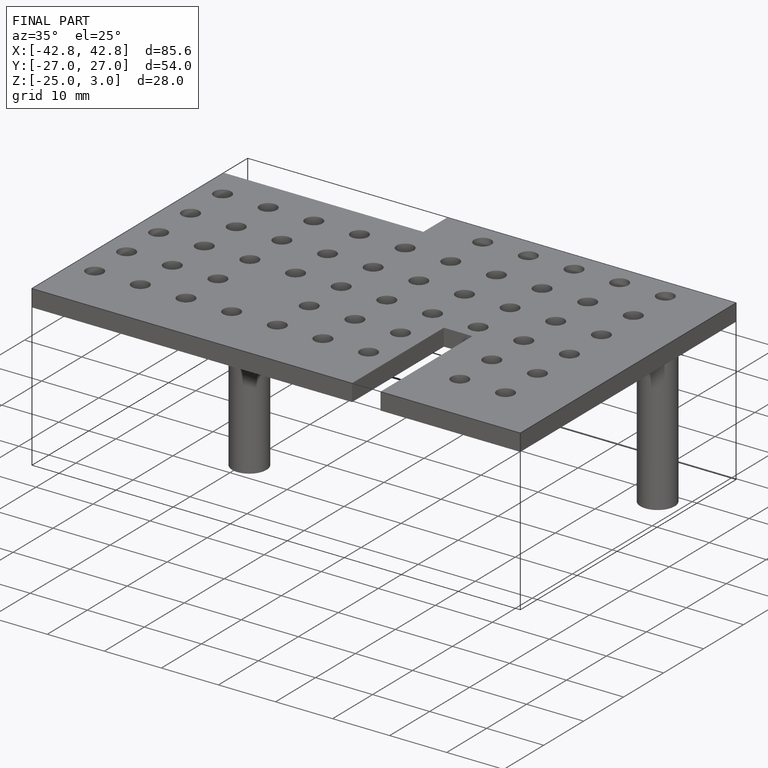
[diagram: finished part — iso view with bounding-box wireframe]
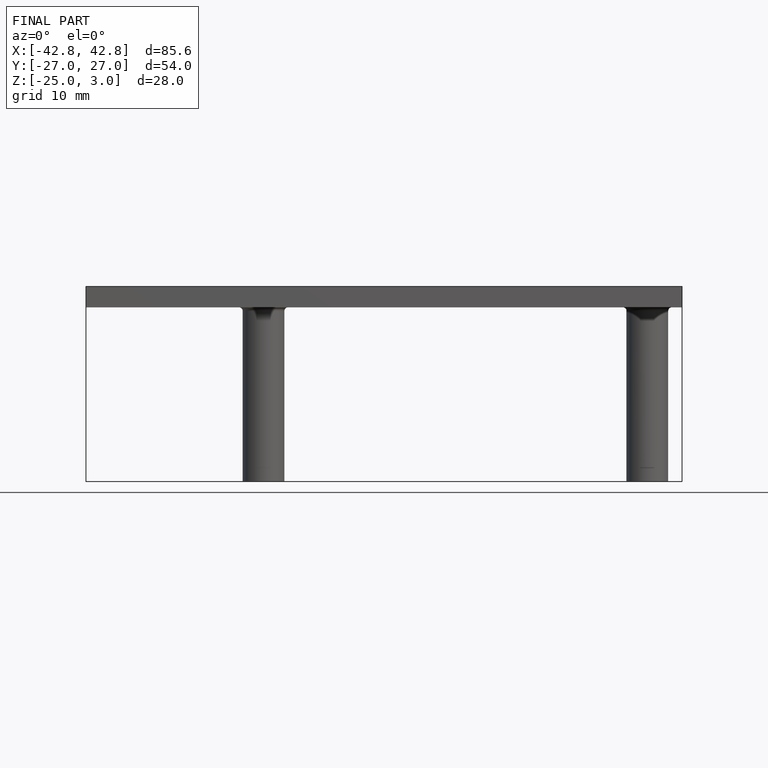
[diagram: finished part — front view with bounding-box wireframe]
